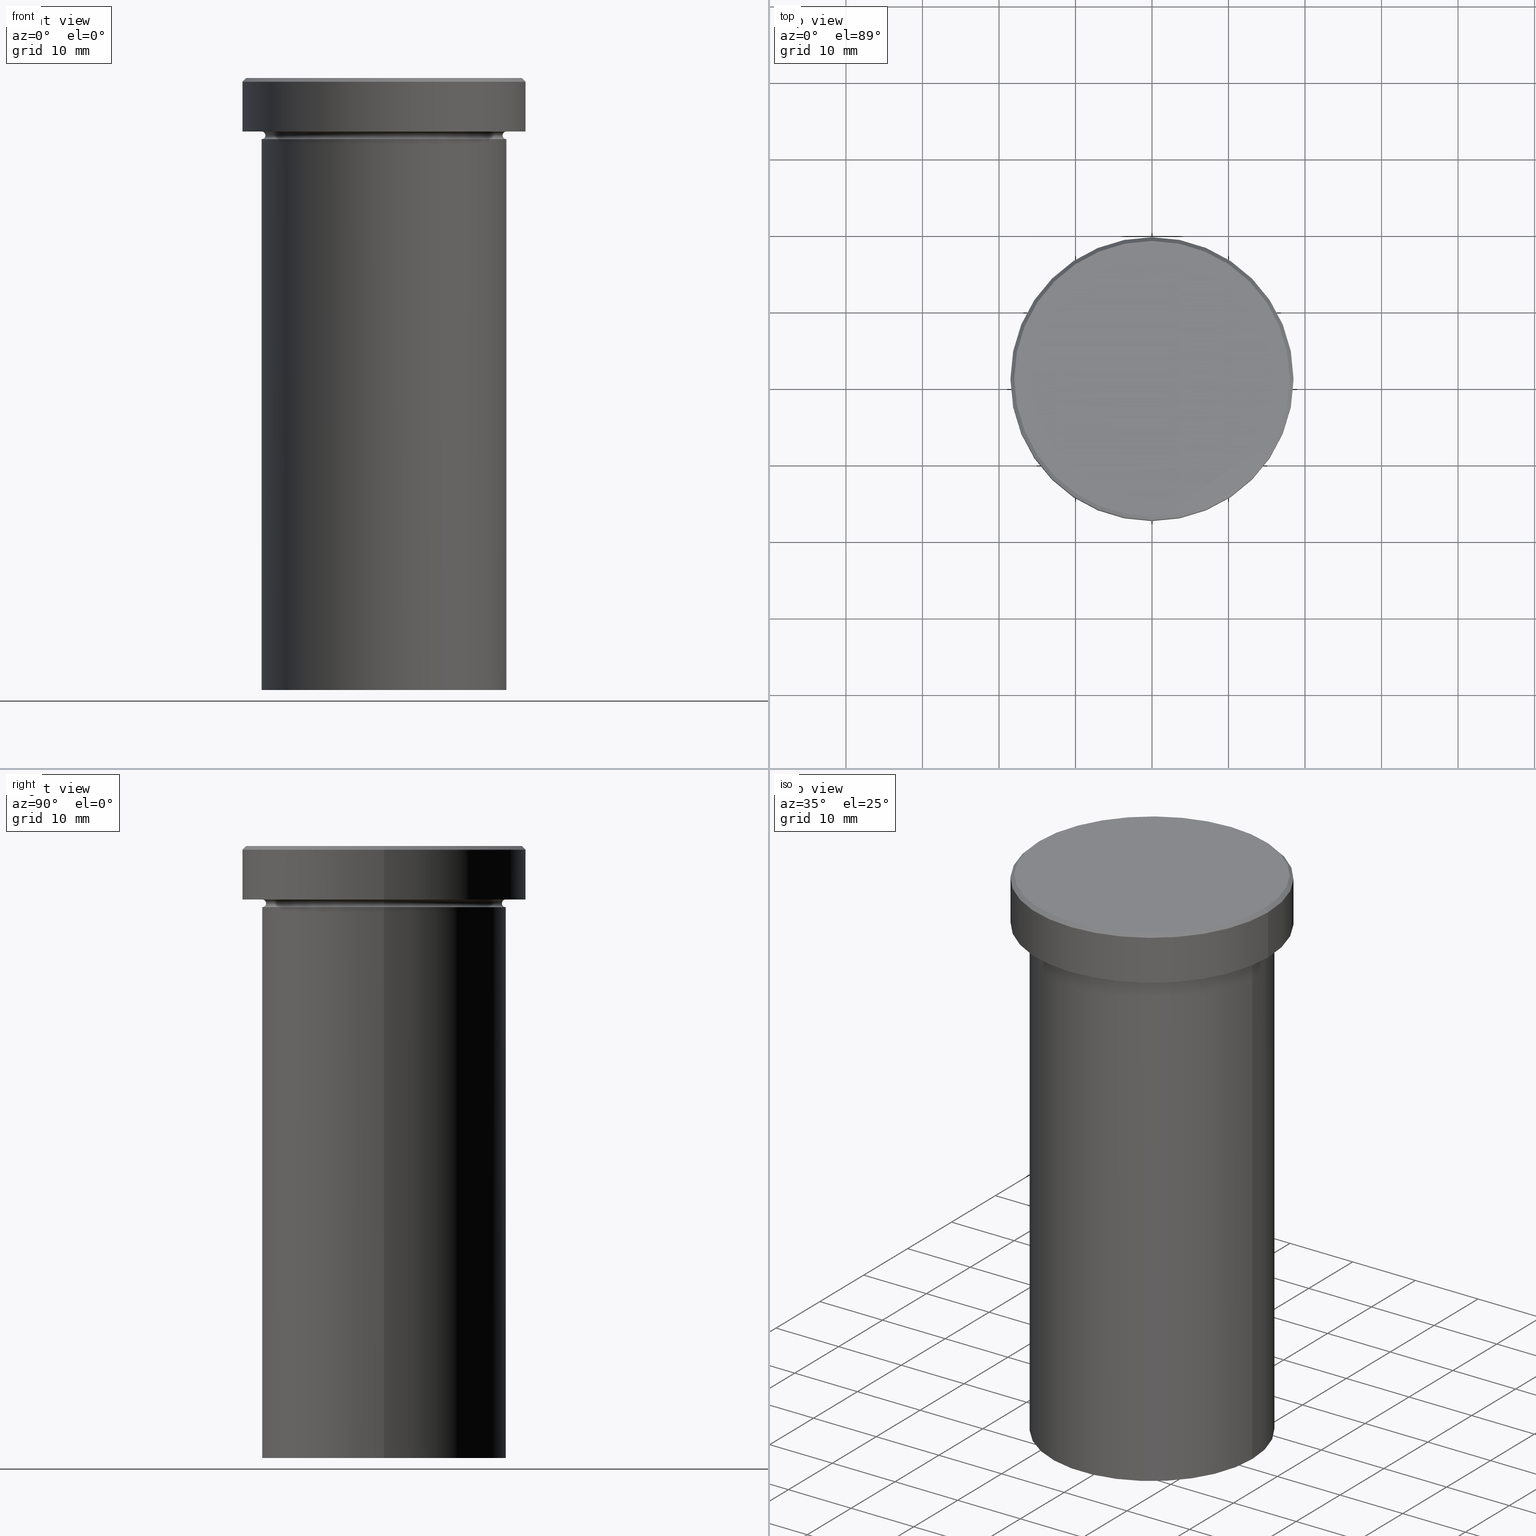
[diagram: canonical four-view strip — front | top / right | iso, engineering-drawing reading convention]
A machine part, canonical four-view strip (front | top / right | iso — engineering-drawing reading convention). The complete STEP part file that produces these views, byte-faithful:
ISO-10303-21;
HEADER;
FILE_DESCRIPTION (( 'STEP AP203' ),
    '1' );
FILE_NAME ('29da.STEP',
    '2024-01-02T18:53:01',
    ( '' ),
    ( '' ),
    'SwSTEP 2.0',
    'SolidWorks 2019',
    '' );
FILE_SCHEMA (( 'CONFIG_CONTROL_DESIGN' ));
ENDSEC;

DATA;
#1 = CARTESIAN_POINT ( 'NONE',  ( 0.000000000000000000, 0.000000000000000000, 0.000000000000000000 ) ) ;
#2 = VERTEX_POINT ( 'NONE', #41 ) ;
#3 = DIRECTION ( 'NONE',  ( -0.000000000000000000, -0.000000000000000000, 1.000000000000000000 ) ) ;
#4 = FACE_OUTER_BOUND ( 'NONE', #359, .T. ) ;
#5 = DIRECTION ( 'NONE',  ( -0.000000000000000000, -0.000000000000000000, 1.000000000000000000 ) ) ;
#6 = DIRECTION ( 'NONE',  ( -0.000000000000000000, -0.000000000000000000, 1.000000000000000000 ) ) ;
#7 = ORIENTED_EDGE ( 'NONE', *, *, #98, .T. ) ;
#8 = FACE_OUTER_BOUND ( 'NONE', #200, .T. ) ;
#9 = TOROIDAL_SURFACE ( 'NONE', #298, 16.00000000000000000, 0.5000000000000000000 ) ;
#10 = CIRCLE ( 'NONE', #383, 16.00000000000000000 ) ;
#11 = ORIENTED_EDGE ( 'NONE', *, *, #20, .F. ) ;
#12 = CARTESIAN_POINT ( 'NONE',  ( 0.000000000000000000, 0.000000000000000000, -0.5000000000000213163 ) ) ;
#13 = DATE_AND_TIME ( #304, #96 ) ;
#14 = ORIENTED_EDGE ( 'NONE', *, *, #139, .F. ) ;
#15 = DIRECTION ( 'NONE',  ( -0.7071067811865402453, 0.000000000000000000, -0.7071067811865549002 ) ) ;
#16 = EDGE_CURVE ( 'NONE', #211, #57, #394, .T. ) ;
#17 = VERTEX_POINT ( 'NONE', #253 ) ;
#18 = PERSON_AND_ORGANIZATION_ROLE ( 'design_owner' ) ;
#19 = DIRECTION ( 'NONE',  ( 1.000000000000000000, 0.000000000000000000, 0.000000000000000000 ) ) ;
#20 = EDGE_CURVE ( 'NONE', #89, #211, #169, .T. ) ;
#21 = CALENDAR_DATE ( 2024, 2, 1 ) ;
#22 = CIRCLE ( 'NONE', #54, 16.00000000000000000 ) ;
#23 = UNCERTAINTY_MEASURE_WITH_UNIT (LENGTH_MEASURE( 1.000000000000000082E-05 ), #145, 'distance_accuracy_value', 'NONE');
#24 = ORIENTED_EDGE ( 'NONE', *, *, #147, .F. ) ;
#25 = FACE_OUTER_BOUND ( 'NONE', #237, .T. ) ;
#26 = PERSON ( 'NEUR�EN�', 'NEUR�EN�', 'NEUR�EN�', ('NEUR�EN�'), ('NEUR�EN�'), ('NEUR�EN�') ) ;
#27 = DIRECTION ( 'NONE',  ( -0.000000000000000000, -0.000000000000000000, 1.000000000000000000 ) ) ;
#28 = PRODUCT_RELATED_PRODUCT_CATEGORY ( 'detail', '', ( #306 ) ) ;
#29 = DIRECTION ( 'NONE',  ( 0.000000000000000000, 0.000000000000000000, -1.000000000000000000 ) ) ;
#30 = CONICAL_SURFACE ( 'NONE', #388, 17.99999999999998934, 0.7853981633974380649 ) ;
#31 = ORIENTED_EDGE ( 'NONE', *, *, #210, .F. ) ;
#32 = EDGE_CURVE ( 'NONE', #211, #227, #196, .T. ) ;
#33 = DIRECTION ( 'NONE',  ( 0.000000000000000000, 0.000000000000000000, -1.000000000000000000 ) ) ;
#34 = FACE_OUTER_BOUND ( 'NONE', #202, .T. ) ;
#35 = DIRECTION ( 'NONE',  ( 1.000000000000000000, 0.000000000000000000, 0.000000000000000000 ) ) ;
#36 = AXIS2_PLACEMENT_3D ( 'NONE', #387, #27, #86 ) ;
#37 = VECTOR ( 'NONE', #5, 1000.000000000000000 ) ;
#38 = CARTESIAN_POINT ( 'NONE',  ( 0.000000000000000000, 0.000000000000000000, -7.500000000000000000 ) ) ;
#39 = DIRECTION ( 'NONE',  ( 1.000000000000000000, 0.000000000000000000, 0.000000000000000000 ) ) ;
#40 = FACE_BOUND ( 'NONE', #176, .T. ) ;
#41 = CARTESIAN_POINT ( 'NONE',  ( -18.50000000000000000, 2.265596578422603396E-15, -0.5000000000000213163 ) ) ;
#42 = ORIENTED_EDGE ( 'NONE', *, *, #32, .T. ) ;
#43 = CARTESIAN_POINT ( 'NONE',  ( 16.00000000000000000, 0.000000000000000000, -8.000000000000000000 ) ) ;
#44 = APPROVAL_STATUS ( 'not_yet_approved' ) ;
#45 = EDGE_CURVE ( 'NONE', #47, #270, #161, .T. ) ;
#46 = DIRECTION ( 'NONE',  ( -0.000000000000000000, -0.000000000000000000, 1.000000000000000000 ) ) ;
#47 = VERTEX_POINT ( 'NONE', #291 ) ;
#48 = APPROVAL_DATE_TIME ( #274, #320 ) ;
#49 = EDGE_CURVE ( 'NONE', #135, #213, #62, .T. ) ;
#50 = DIRECTION ( 'NONE',  ( 0.000000000000000000, -1.000000000000000000, 0.000000000000000000 ) ) ;
#51 = CARTESIAN_POINT ( 'NONE',  ( 16.00000000000000000, 0.000000000000000000, -80.00000000000000000 ) ) ;
#52 = APPROVAL_PERSON_ORGANIZATION ( #64, #88, #122 ) ;
#53 = CONICAL_SURFACE ( 'NONE', #399, 17.99999999999998934, 0.7853981633974380649 ) ;
#54 = AXIS2_PLACEMENT_3D ( 'NONE', #189, #67, #91 ) ;
#55 = ORIENTED_EDGE ( 'NONE', *, *, #45, .F. ) ;
#56 = DESIGN_CONTEXT ( 'detailed design', #216, 'design' ) ;
#57 = VERTEX_POINT ( 'NONE', #301 ) ;
#58 = EDGE_CURVE ( 'NONE', #270, #2, #137, .T. ) ;
#59 = APPROVAL_DATE_TIME ( #78, #258 ) ;
#60 = DIRECTION ( 'NONE',  ( -0.000000000000000000, -0.000000000000000000, 1.000000000000000000 ) ) ;
#61 = AXIS2_PLACEMENT_3D ( 'NONE', #181, #3, #347 ) ;
#62 = CIRCLE ( 'NONE', #220, 17.99999999999998934 ) ;
#63 = DIRECTION ( 'NONE',  ( 1.000000000000000000, 0.000000000000000000, 0.000000000000000000 ) ) ;
#64 = PERSON_AND_ORGANIZATION ( #26, #340 ) ;
#65 = DIRECTION ( 'NONE',  ( -0.000000000000000000, -0.000000000000000000, 1.000000000000000000 ) ) ;
#66 = ORIENTED_EDGE ( 'NONE', *, *, #131, .T. ) ;
#67 = DIRECTION ( 'NONE',  ( -0.000000000000000000, -0.000000000000000000, 1.000000000000000000 ) ) ;
#68 = CC_DESIGN_PERSON_AND_ORGANIZATION_ASSIGNMENT ( #141, #199, ( #170 ) ) ;
#69 = DIRECTION ( 'NONE',  ( -0.000000000000000000, -0.000000000000000000, 1.000000000000000000 ) ) ;
#70 = CARTESIAN_POINT ( 'NONE',  ( -18.50000000000000000, 2.265596578422603396E-15, 0.000000000000000000 ) ) ;
#71 = SHAPE_DEFINITION_REPRESENTATION ( #94, #153 ) ;
#72 = DIRECTION ( 'NONE',  ( -0.000000000000000000, -0.000000000000000000, 1.000000000000000000 ) ) ;
#73 = EDGE_CURVE ( 'NONE', #47, #17, #164, .T. ) ;
#74 = VERTEX_POINT ( 'NONE', #90 ) ;
#75 = LINE ( 'NONE', #311, #151 ) ;
#76 = DIRECTION ( 'NONE',  ( 1.000000000000000000, 0.000000000000000000, 0.000000000000000000 ) ) ;
#77 = ORIENTED_EDGE ( 'NONE', *, *, #16, .F. ) ;
#78 = DATE_AND_TIME ( #104, #392 ) ;
#79 = AXIS2_PLACEMENT_3D ( 'NONE', #303, #395, #268 ) ;
#80 = ORIENTED_EDGE ( 'NONE', *, *, #312, .F. ) ;
#81 = COORDINATED_UNIVERSAL_TIME_OFFSET ( 1, 0, .AHEAD. ) ;
#82 = ORIENTED_EDGE ( 'NONE', *, *, #201, .T. ) ;
#83 = ADVANCED_FACE ( 'NONE', ( #263 ), #245, .F. ) ;
#84 = ORIENTED_EDGE ( 'NONE', *, *, #73, .F. ) ;
#85 = DATE_AND_TIME ( #156, #271 ) ;
#86 = DIRECTION ( 'NONE',  ( 1.000000000000000000, 0.000000000000000000, 0.000000000000000000 ) ) ;
#87 = AXIS2_PLACEMENT_3D ( 'NONE', #129, #329, #217 ) ;
#88 = APPROVAL ( #290, 'NEUR�EN�' ) ;
#89 = VERTEX_POINT ( 'NONE', #393 ) ;
#90 = CARTESIAN_POINT ( 'NONE',  ( -16.00000000000000000, 1.959434878635765131E-15, -80.00000000000000000 ) ) ;
#91 = DIRECTION ( 'NONE',  ( 1.000000000000000000, 0.000000000000000000, 0.000000000000000000 ) ) ;
#92 = CC_DESIGN_DATE_AND_TIME_ASSIGNMENT ( #85, #354, ( #307 ) ) ;
#93 = PERSON_AND_ORGANIZATION ( #26, #340 ) ;
#94 = PRODUCT_DEFINITION_SHAPE ( 'NONE', 'NONE',  #170 ) ;
#95 = ORIENTED_EDGE ( 'NONE', *, *, #131, .F. ) ;
#96 = LOCAL_TIME ( 19, 53, 1.000000000000000000, #327 ) ;
#97 = ORIENTED_EDGE ( 'NONE', *, *, #210, .T. ) ;
#98 = EDGE_CURVE ( 'NONE', #17, #2, #125, .T. ) ;
#99 = DIRECTION ( 'NONE',  ( 1.000000000000000000, 0.000000000000000000, 0.000000000000000000 ) ) ;
#100 = CIRCLE ( 'NONE', #332, 18.50000000000000000 ) ;
#101 = AXIS2_PLACEMENT_3D ( 'NONE', #364, #223, #297 ) ;
#102 = ORIENTED_EDGE ( 'NONE', *, *, #73, .T. ) ;
#103 = DIRECTION ( 'NONE',  ( 0.000000000000000000, 0.000000000000000000, -1.000000000000000000 ) ) ;
#104 = CALENDAR_DATE ( 2024, 2, 1 ) ;
#105 = CARTESIAN_POINT ( 'NONE',  ( 0.000000000000000000, 0.000000000000000000, 0.000000000000000000 ) ) ;
#106 = ORIENTED_EDGE ( 'NONE', *, *, #357, .F. ) ;
#107 = DIRECTION ( 'NONE',  ( 1.000000000000000000, 0.000000000000000000, 0.000000000000000000 ) ) ;
#108 = APPLICATION_CONTEXT ( 'configuration controlled 3d designs of mechanical parts and assemblies' ) ;
#109 = CARTESIAN_POINT ( 'NONE',  ( 0.000000000000000000, 0.000000000000000000, -80.00000000000000000 ) ) ;
#110 = DIRECTION ( 'NONE',  ( -0.000000000000000000, -0.000000000000000000, 1.000000000000000000 ) ) ;
#111 = DIRECTION ( 'NONE',  ( 1.000000000000000000, 0.000000000000000000, 0.000000000000000000 ) ) ;
#112 = FACE_OUTER_BOUND ( 'NONE', #302, .T. ) ;
#113 = CARTESIAN_POINT ( 'NONE',  ( 0.000000000000000000, 0.000000000000000000, -7.500000000000000000 ) ) ;
#114 = DIRECTION ( 'NONE',  ( 1.000000000000000000, 0.000000000000000000, 0.000000000000000000 ) ) ;
#115 = MANIFOLD_SOLID_BREP ( 'Zkosen�1', #407 ) ;
#116 = VECTOR ( 'NONE', #168, 1000.000000000000114 ) ;
#117 = CIRCLE ( 'NONE', #36, 17.99999999999998934 ) ;
#118 = ORIENTED_EDGE ( 'NONE', *, *, #361, .T. ) ;
#119 = FACE_OUTER_BOUND ( 'NONE', #214, .T. ) ;
#120 = ORIENTED_EDGE ( 'NONE', *, *, #45, .T. ) ;
#121 = ADVANCED_FACE ( 'NONE', ( #193 ), #261, .T. ) ;
#122 = APPROVAL_ROLE ( '' ) ;
#123 = ORIENTED_EDGE ( 'NONE', *, *, #20, .T. ) ;
#124 = ORIENTED_EDGE ( 'NONE', *, *, #32, .F. ) ;
#125 = LINE ( 'NONE', #70, #369 ) ;
#126 = PERSON_AND_ORGANIZATION ( #26, #340 ) ;
#127 = VECTOR ( 'NONE', #15, 1000.000000000000114 ) ;
#128 = AXIS2_PLACEMENT_3D ( 'NONE', #150, #103, #240 ) ;
#129 = CARTESIAN_POINT ( 'NONE',  ( 0.000000000000000000, 0.000000000000000000, -6.999999999999999112 ) ) ;
#130 = ORIENTED_EDGE ( 'NONE', *, *, #224, .F. ) ;
#131 = EDGE_CURVE ( 'NONE', #57, #229, #10, .T. ) ;
#132 = DIRECTION ( 'NONE',  ( 0.000000000000000000, 0.000000000000000000, -1.000000000000000000 ) ) ;
#133 = LINE ( 'NONE', #360, #127 ) ;
#134 = CC_DESIGN_APPROVAL ( #88, ( #307 ) ) ;
#135 = VERTEX_POINT ( 'NONE', #286 ) ;
#136 = CIRCLE ( 'NONE', #325, 15.50000000000000000 ) ;
#137 = CIRCLE ( 'NONE', #128, 18.50000000000000000 ) ;
#138 = FACE_OUTER_BOUND ( 'NONE', #235, .T. ) ;
#139 = EDGE_CURVE ( 'NONE', #17, #47, #310, .T. ) ;
#140 = PERSON_AND_ORGANIZATION ( #26, #340 ) ;
#141 = PERSON_AND_ORGANIZATION ( #26, #340 ) ;
#142 = CC_DESIGN_APPROVAL ( #258, ( #170 ) ) ;
#143 = ORIENTED_EDGE ( 'NONE', *, *, #312, .T. ) ;
#144 = AXIS2_PLACEMENT_3D ( 'NONE', #38, #378, #288 ) ;
#145 =( LENGTH_UNIT ( ) NAMED_UNIT ( * ) SI_UNIT ( .MILLI., .METRE. ) );
#146 = CALENDAR_DATE ( 2024, 2, 1 ) ;
#147 = EDGE_CURVE ( 'NONE', #213, #135, #117, .T. ) ;
#148 = PLANE ( 'NONE',  #408 ) ;
#149 = LOCAL_TIME ( 19, 53, 1.000000000000000000, #269 ) ;
#150 = CARTESIAN_POINT ( 'NONE',  ( 0.000000000000000000, 0.000000000000000000, -0.5000000000000213163 ) ) ;
#151 = VECTOR ( 'NONE', #72, 1000.000000000000000 ) ;
#152 = ADVANCED_FACE ( 'NONE', ( #317 ), #53, .T. ) ;
#153 = ADVANCED_BREP_SHAPE_REPRESENTATION ( '29da', ( #115, #232 ), #205 ) ;
#154 = DIRECTION ( 'NONE',  ( -1.000000000000000000, 0.000000000000000000, 0.000000000000000000 ) ) ;
#155 = DIRECTION ( 'NONE',  ( 0.000000000000000000, 0.000000000000000000, 1.000000000000000000 ) ) ;
#156 = CALENDAR_DATE ( 2024, 2, 1 ) ;
#157 = ORIENTED_EDGE ( 'NONE', *, *, #49, .F. ) ;
#158 = DIRECTION ( 'NONE',  ( -1.000000000000000000, 0.000000000000000000, -0.000000000000000000 ) ) ;
#159 = CC_DESIGN_APPROVAL ( #320, ( #367 ) ) ;
#160 = AXIS2_PLACEMENT_3D ( 'NONE', #346, #60, #315 ) ;
#161 = LINE ( 'NONE', #406, #319 ) ;
#162 = PLANE ( 'NONE',  #79 ) ;
#163 = ADVANCED_FACE ( 'NONE', ( #278 ), #343, .T. ) ;
#164 = CIRCLE ( 'NONE', #207, 18.50000000000000000 ) ;
#165 = ORIENTED_EDGE ( 'NONE', *, *, #276, .T. ) ;
#166 = PERSON_AND_ORGANIZATION ( #26, #340 ) ;
#167 = LINE ( 'NONE', #300, #116 ) ;
#168 = DIRECTION ( 'NONE',  ( 0.7071067811865402453, 8.659560562354844111E-17, -0.7071067811865549002 ) ) ;
#169 = CIRCLE ( 'NONE', #277, 15.50000000000000000 ) ;
#170 = PRODUCT_DEFINITION ( 'NEZN�M�', '', #367, #56 ) ;
#171 = CARTESIAN_POINT ( 'NONE',  ( 0.000000000000000000, 0.000000000000000000, -8.000000000000000000 ) ) ;
#172 = CC_DESIGN_PERSON_AND_ORGANIZATION_ASSIGNMENT ( #126, #256, ( #307 ) ) ;
#173 = CIRCLE ( 'NONE', #266, 16.00000000000000000 ) ;
#174 = AXIS2_PLACEMENT_3D ( 'NONE', #171, #397, #99 ) ;
#175 = DATE_AND_TIME ( #146, #348 ) ;
#176 = EDGE_LOOP ( 'NONE', ( #371, #187 ) ) ;
#177 = CARTESIAN_POINT ( 'NONE',  ( 0.000000000000000000, 0.000000000000000000, 0.000000000000000000 ) ) ;
#178 = CARTESIAN_POINT ( 'NONE',  ( 0.000000000000000000, 0.000000000000000000, 0.000000000000000000 ) ) ;
#179 = AXIS2_PLACEMENT_3D ( 'NONE', #389, #243, #351 ) ;
#180 = EDGE_CURVE ( 'NONE', #135, #270, #167, .T. ) ;
#181 = CARTESIAN_POINT ( 'NONE',  ( 0.000000000000000000, 0.000000000000000000, 0.000000000000000000 ) ) ;
#182 = ORIENTED_EDGE ( 'NONE', *, *, #282, .T. ) ;
#183 = DIRECTION ( 'NONE',  ( 1.224646799147353207E-16, 1.000000000000000000, 0.000000000000000000 ) ) ;
#184 = CC_DESIGN_PERSON_AND_ORGANIZATION_ASSIGNMENT ( #140, #339, ( #367 ) ) ;
#185 = CYLINDRICAL_SURFACE ( 'NONE', #61, 16.00000000000000000 ) ;
#186 = PERSON_AND_ORGANIZATION ( #26, #340 ) ;
#187 = ORIENTED_EDGE ( 'NONE', *, *, #188, .T. ) ;
#188 = EDGE_CURVE ( 'NONE', #344, #227, #173, .T. ) ;
#189 = CARTESIAN_POINT ( 'NONE',  ( 0.000000000000000000, 0.000000000000000000, -80.00000000000000000 ) ) ;
#190 = EDGE_LOOP ( 'NONE', ( #257, #208 ) ) ;
#191 = DIRECTION ( 'NONE',  ( -1.000000000000000000, 0.000000000000000000, 0.000000000000000000 ) ) ;
#192 = AXIS2_PLACEMENT_3D ( 'NONE', #331, #46, #114 ) ;
#193 = FACE_OUTER_BOUND ( 'NONE', #385, .T. ) ;
#194 = CC_DESIGN_DATE_AND_TIME_ASSIGNMENT ( #175, #336, ( #170 ) ) ;
#195 = CIRCLE ( 'NONE', #233, 16.00000000000000000 ) ;
#196 = CIRCLE ( 'NONE', #179, 0.5000000000000004441 ) ;
#197 = ADVANCED_FACE ( 'NONE', ( #138 ), #162, .T. ) ;
#198 = CARTESIAN_POINT ( 'NONE',  ( 16.00000000000000000, 1.959434878635765131E-15, -6.999999999999999112 ) ) ;
#199 = PERSON_AND_ORGANIZATION_ROLE ( 'creator' ) ;
#200 = EDGE_LOOP ( 'NONE', ( #231, #273, #120, #279 ) ) ;
#201 = EDGE_CURVE ( 'NONE', #275, #74, #22, .T. ) ;
#202 = EDGE_LOOP ( 'NONE', ( #80, #123, #42, #409 ) ) ;
#203 =( NAMED_UNIT ( * ) SI_UNIT ( $, .STERADIAN. ) SOLID_ANGLE_UNIT ( ) );
#204 = CARTESIAN_POINT ( 'NONE',  ( 0.000000000000000000, 18.50000000000000000, -6.999999999999999112 ) ) ;
#205 =( GEOMETRIC_REPRESENTATION_CONTEXT ( 3 ) GLOBAL_UNCERTAINTY_ASSIGNED_CONTEXT ( ( #23 ) ) GLOBAL_UNIT_ASSIGNED_CONTEXT ( ( #145, #313, #203 ) ) REPRESENTATION_CONTEXT ( 'NONE', 'WORKASPACE' ) );
#206 = TOROIDAL_SURFACE ( 'NONE', #144, 16.00000000000000000, 0.5000000000000000000 ) ;
#207 = AXIS2_PLACEMENT_3D ( 'NONE', #281, #110, #328 ) ;
#208 = ORIENTED_EDGE ( 'NONE', *, *, #326, .F. ) ;
#209 = CARTESIAN_POINT ( 'NONE',  ( 16.00000000000000000, 1.959434878635765131E-15, -7.500000000000000000 ) ) ;
#210 = EDGE_CURVE ( 'NONE', #275, #229, #321, .T. ) ;
#211 = VERTEX_POINT ( 'NONE', #219 ) ;
#212 = EDGE_LOOP ( 'NONE', ( #338, #249, #97, #95 ) ) ;
#213 = VERTEX_POINT ( 'NONE', #323 ) ;
#214 = EDGE_LOOP ( 'NONE', ( #77, #11, #318, #182 ) ) ;
#215 = EDGE_CURVE ( 'NONE', #227, #344, #267, .T. ) ;
#216 = APPLICATION_CONTEXT ( 'configuration controlled 3d designs of mechanical parts and assemblies' ) ;
#217 = DIRECTION ( 'NONE',  ( -1.000000000000000000, 0.000000000000000000, 0.000000000000000000 ) ) ;
#218 = APPROVAL_PERSON_ORGANIZATION ( #234, #320, #333 ) ;
#219 = CARTESIAN_POINT ( 'NONE',  ( -15.50000000000000000, 1.928818708657081344E-15, -7.500000000000000000 ) ) ;
#220 = AXIS2_PLACEMENT_3D ( 'NONE', #1, #355, #39 ) ;
#221 = AXIS2_PLACEMENT_3D ( 'NONE', #209, #247, #314 ) ;
#222 = APPROVAL_DATE_TIME ( #13, #88 ) ;
#223 = DIRECTION ( 'NONE',  ( -0.000000000000000000, -0.000000000000000000, 1.000000000000000000 ) ) ;
#224 = EDGE_CURVE ( 'NONE', #2, #270, #100, .T. ) ;
#225 = CC_DESIGN_SECURITY_CLASSIFICATION ( #307, ( #367 ) ) ;
#226 = AXIS2_PLACEMENT_3D ( 'NONE', #337, #50, #262 ) ;
#227 = VERTEX_POINT ( 'NONE', #363 ) ;
#228 = CYLINDRICAL_SURFACE ( 'NONE', #368, 18.50000000000000000 ) ;
#229 = VERTEX_POINT ( 'NONE', #43 ) ;
#230 = APPROVAL_STATUS ( 'not_yet_approved' ) ;
#231 = ORIENTED_EDGE ( 'NONE', *, *, #98, .F. ) ;
#232 = AXIS2_PLACEMENT_3D ( 'NONE', #105, #155, #107 ) ;
#233 = AXIS2_PLACEMENT_3D ( 'NONE', #109, #349, #19 ) ;
#234 = PERSON_AND_ORGANIZATION ( #26, #340 ) ;
#235 = EDGE_LOOP ( 'NONE', ( #296, #285 ) ) ;
#236 = CC_DESIGN_PERSON_AND_ORGANIZATION_ASSIGNMENT ( #186, #259, ( #367 ) ) ;
#237 = EDGE_LOOP ( 'NONE', ( #330, #24, #118, #352 ) ) ;
#238 = ORIENTED_EDGE ( 'NONE', *, *, #224, .T. ) ;
#239 = COORDINATED_UNIVERSAL_TIME_OFFSET ( 1, 0, .AHEAD. ) ;
#240 = DIRECTION ( 'NONE',  ( 1.000000000000000000, 0.000000000000000000, 0.000000000000000000 ) ) ;
#241 = DIRECTION ( 'NONE',  ( 1.000000000000000000, 0.000000000000000000, 0.000000000000000000 ) ) ;
#242 = CARTESIAN_POINT ( 'NONE',  ( 0.000000000000000000, 0.000000000000000000, -7.500000000000000000 ) ) ;
#243 = DIRECTION ( 'NONE',  ( -0.000000000000000000, -1.000000000000000000, -0.000000000000000000 ) ) ;
#244 = ADVANCED_FACE ( 'NONE', ( #25 ), #30, .T. ) ;
#245 = TOROIDAL_SURFACE ( 'NONE', #101, 16.00000000000000000, 0.5000000000000000000 ) ;
#246 = EDGE_LOOP ( 'NONE', ( #102, #7, #238, #55 ) ) ;
#247 = DIRECTION ( 'NONE',  ( -1.224646799147353207E-16, 1.000000000000000000, 0.000000000000000000 ) ) ;
#248 = DIRECTION ( 'NONE',  ( -0.000000000000000000, -0.000000000000000000, 1.000000000000000000 ) ) ;
#249 = ORIENTED_EDGE ( 'NONE', *, *, #326, .T. ) ;
#250 = DIRECTION ( 'NONE',  ( -0.000000000000000000, -0.000000000000000000, 1.000000000000000000 ) ) ;
#251 = FACE_OUTER_BOUND ( 'NONE', #212, .T. ) ;
#252 = CARTESIAN_POINT ( 'NONE',  ( -16.00000000000000000, 1.959434878635765131E-15, -7.500000000000000000 ) ) ;
#253 = CARTESIAN_POINT ( 'NONE',  ( -18.50000000000000000, 2.265596578422603396E-15, -6.999999999999998224 ) ) ;
#254 = EDGE_LOOP ( 'NONE', ( #157, #342, #130, #292 ) ) ;
#255 = DIRECTION ( 'NONE',  ( -0.000000000000000000, -0.000000000000000000, 1.000000000000000000 ) ) ;
#256 = PERSON_AND_ORGANIZATION_ROLE ( 'classification_officer' ) ;
#257 = ORIENTED_EDGE ( 'NONE', *, *, #201, .F. ) ;
#258 = APPROVAL ( #44, 'NEUR�EN�' ) ;
#259 = PERSON_AND_ORGANIZATION_ROLE ( 'design_supplier' ) ;
#260 = APPLICATION_PROTOCOL_DEFINITION ( 'international standard', 'config_control_design', 1994, #216 ) ;
#261 = CYLINDRICAL_SURFACE ( 'NONE', #192, 16.00000000000000000 ) ;
#262 = DIRECTION ( 'NONE',  ( 0.000000000000000000, 0.000000000000000000, -1.000000000000000000 ) ) ;
#263 = FACE_OUTER_BOUND ( 'NONE', #280, .T. ) ;
#264 = APPROVAL_PERSON_ORGANIZATION ( #93, #258, #365 ) ;
#265 = EDGE_CURVE ( 'NONE', #211, #89, #136, .T. ) ;
#266 = AXIS2_PLACEMENT_3D ( 'NONE', #358, #69, #191 ) ;
#267 = CIRCLE ( 'NONE', #87, 16.00000000000000000 ) ;
#268 = DIRECTION ( 'NONE',  ( 1.000000000000000000, 0.000000000000000000, 0.000000000000000000 ) ) ;
#269 = COORDINATED_UNIVERSAL_TIME_OFFSET ( 1, 0, .AHEAD. ) ;
#270 = VERTEX_POINT ( 'NONE', #402 ) ;
#271 = LOCAL_TIME ( 19, 53, 1.000000000000000000, #239 ) ;
#272 = CARTESIAN_POINT ( 'NONE',  ( 0.000000000000000000, 0.000000000000000000, 0.000000000000000000 ) ) ;
#273 = ORIENTED_EDGE ( 'NONE', *, *, #139, .T. ) ;
#274 = DATE_AND_TIME ( #21, #149 ) ;
#275 = VERTEX_POINT ( 'NONE', #51 ) ;
#276 = EDGE_CURVE ( 'NONE', #74, #57, #75, .T. ) ;
#277 = AXIS2_PLACEMENT_3D ( 'NONE', #113, #6, #35 ) ;
#278 = FACE_OUTER_BOUND ( 'NONE', #246, .T. ) ;
#279 = ORIENTED_EDGE ( 'NONE', *, *, #58, .T. ) ;
#280 = EDGE_LOOP ( 'NONE', ( #289, #374, #66, #106 ) ) ;
#281 = CARTESIAN_POINT ( 'NONE',  ( 0.000000000000000000, 0.000000000000000000, -6.999999999999998224 ) ) ;
#282 = EDGE_CURVE ( 'NONE', #229, #57, #309, .T. ) ;
#283 = CARTESIAN_POINT ( 'NONE',  ( 0.000000000000000000, 0.000000000000000000, -6.999999999999998224 ) ) ;
#284 = CARTESIAN_POINT ( 'NONE',  ( 0.000000000000000000, 0.000000000000000000, -7.500000000000000000 ) ) ;
#285 = ORIENTED_EDGE ( 'NONE', *, *, #49, .T. ) ;
#286 = CARTESIAN_POINT ( 'NONE',  ( 17.99999999999998934, 2.234980408443918820E-15, 0.000000000000000000 ) ) ;
#287 = CIRCLE ( 'NONE', #226, 0.5000000000000004441 ) ;
#288 = DIRECTION ( 'NONE',  ( -1.000000000000000000, 0.000000000000000000, 0.000000000000000000 ) ) ;
#289 = ORIENTED_EDGE ( 'NONE', *, *, #265, .F. ) ;
#290 = APPROVAL_STATUS ( 'not_yet_approved' ) ;
#291 = CARTESIAN_POINT ( 'NONE',  ( 18.50000000000000000, 0.000000000000000000, -6.999999999999998224 ) ) ;
#292 = ORIENTED_EDGE ( 'NONE', *, *, #361, .F. ) ;
#293 = ADVANCED_FACE ( 'NONE', ( #373 ), #148, .T. ) ;
#294 = CARTESIAN_POINT ( 'NONE',  ( 16.00000000000000000, 0.000000000000000000, 0.000000000000000000 ) ) ;
#295 = SECURITY_CLASSIFICATION_LEVEL ( 'unclassified' ) ;
#296 = ORIENTED_EDGE ( 'NONE', *, *, #147, .T. ) ;
#297 = DIRECTION ( 'NONE',  ( 1.000000000000000000, 0.000000000000000000, 0.000000000000000000 ) ) ;
#298 = AXIS2_PLACEMENT_3D ( 'NONE', #284, #33, #380 ) ;
#299 = AXIS2_PLACEMENT_3D ( 'NONE', #283, #248, #241 ) ;
#300 = CARTESIAN_POINT ( 'NONE',  ( 17.99999999999998934, 2.204364238465234244E-15, 0.000000000000000000 ) ) ;
#301 = CARTESIAN_POINT ( 'NONE',  ( -16.00000000000000000, 1.959434878635765131E-15, -8.000000000000000000 ) ) ;
#302 = EDGE_LOOP ( 'NONE', ( #324, #143, #401, #124 ) ) ;
#303 = CARTESIAN_POINT ( 'NONE',  ( 0.000000000000000000, 0.000000000000000000, 0.000000000000000000 ) ) ;
#304 = CALENDAR_DATE ( 2024, 2, 1 ) ;
#305 = ADVANCED_FACE ( 'NONE', ( #40, #4 ), #404, .T. ) ;
#306 = PRODUCT ( '29da', '29da', '', ( #376 ) ) ;
#307 = SECURITY_CLASSIFICATION ( '', '', #295 ) ;
#308 = AXIS2_PLACEMENT_3D ( 'NONE', #252, #183, #405 ) ;
#309 = CIRCLE ( 'NONE', #174, 16.00000000000000000 ) ;
#310 = CIRCLE ( 'NONE', #299, 18.50000000000000000 ) ;
#311 = CARTESIAN_POINT ( 'NONE',  ( -16.00000000000000000, 1.959434878635765131E-15, 0.000000000000000000 ) ) ;
#312 = EDGE_CURVE ( 'NONE', #89, #344, #382, .T. ) ;
#313 =( NAMED_UNIT ( * ) PLANE_ANGLE_UNIT ( ) SI_UNIT ( $, .RADIAN. ) );
#314 = DIRECTION ( 'NONE',  ( -1.000000000000000000, -1.224646799147349509E-16, 0.000000000000000000 ) ) ;
#315 = DIRECTION ( 'NONE',  ( 1.000000000000000000, 0.000000000000000000, 0.000000000000000000 ) ) ;
#316 = CC_DESIGN_PERSON_AND_ORGANIZATION_ASSIGNMENT ( #166, #18, ( #306 ) ) ;
#317 = FACE_OUTER_BOUND ( 'NONE', #254, .T. ) ;
#318 = ORIENTED_EDGE ( 'NONE', *, *, #357, .T. ) ;
#319 = VECTOR ( 'NONE', #65, 1000.000000000000000 ) ;
#320 = APPROVAL ( #230, 'NEUR�EN�' ) ;
#321 = LINE ( 'NONE', #294, #37 ) ;
#322 = ORIENTED_EDGE ( 'NONE', *, *, #282, .F. ) ;
#323 = CARTESIAN_POINT ( 'NONE',  ( -17.99999999999998934, 0.000000000000000000, 0.000000000000000000 ) ) ;
#324 = ORIENTED_EDGE ( 'NONE', *, *, #265, .T. ) ;
#325 = AXIS2_PLACEMENT_3D ( 'NONE', #242, #381, #350 ) ;
#326 = EDGE_CURVE ( 'NONE', #74, #275, #195, .T. ) ;
#327 = COORDINATED_UNIVERSAL_TIME_OFFSET ( 1, 0, .AHEAD. ) ;
#328 = DIRECTION ( 'NONE',  ( 1.000000000000000000, 0.000000000000000000, 0.000000000000000000 ) ) ;
#329 = DIRECTION ( 'NONE',  ( -0.000000000000000000, -0.000000000000000000, 1.000000000000000000 ) ) ;
#330 = ORIENTED_EDGE ( 'NONE', *, *, #180, .F. ) ;
#331 = CARTESIAN_POINT ( 'NONE',  ( 0.000000000000000000, 0.000000000000000000, 0.000000000000000000 ) ) ;
#332 = AXIS2_PLACEMENT_3D ( 'NONE', #12, #132, #391 ) ;
#333 = APPROVAL_ROLE ( '' ) ;
#334 = ADVANCED_FACE ( 'NONE', ( #8 ), #228, .T. ) ;
#335 = CARTESIAN_POINT ( 'NONE',  ( 0.000000000000000000, 16.00000000000000000, -80.00000000000000000 ) ) ;
#336 = DATE_TIME_ROLE ( 'creation_date' ) ;
#337 = CARTESIAN_POINT ( 'NONE',  ( 16.00000000000000000, 0.000000000000000000, -7.500000000000000000 ) ) ;
#338 = ORIENTED_EDGE ( 'NONE', *, *, #276, .F. ) ;
#339 = PERSON_AND_ORGANIZATION_ROLE ( 'creator' ) ;
#340 = ORGANIZATION ( 'NEUR�EN�', 'NEUR�EN�', '' ) ;
#341 = TOROIDAL_SURFACE ( 'NONE', #160, 16.00000000000000000, 0.5000000000000000000 ) ;
#342 = ORIENTED_EDGE ( 'NONE', *, *, #180, .T. ) ;
#343 = CYLINDRICAL_SURFACE ( 'NONE', #362, 18.50000000000000000 ) ;
#344 = VERTEX_POINT ( 'NONE', #198 ) ;
#345 = DIRECTION ( 'NONE',  ( 0.000000000000000000, 0.000000000000000000, -1.000000000000000000 ) ) ;
#346 = CARTESIAN_POINT ( 'NONE',  ( 0.000000000000000000, 0.000000000000000000, -7.500000000000000000 ) ) ;
#347 = DIRECTION ( 'NONE',  ( 1.000000000000000000, 0.000000000000000000, 0.000000000000000000 ) ) ;
#348 = LOCAL_TIME ( 19, 53, 1.000000000000000000, #81 ) ;
#349 = DIRECTION ( 'NONE',  ( -0.000000000000000000, -0.000000000000000000, 1.000000000000000000 ) ) ;
#350 = DIRECTION ( 'NONE',  ( 1.000000000000000000, 0.000000000000000000, 0.000000000000000000 ) ) ;
#351 = DIRECTION ( 'NONE',  ( 0.000000000000000000, 0.000000000000000000, -1.000000000000000000 ) ) ;
#352 = ORIENTED_EDGE ( 'NONE', *, *, #58, .F. ) ;
#353 = CARTESIAN_POINT ( 'NONE',  ( 0.000000000000000000, 0.000000000000000000, 0.000000000000000000 ) ) ;
#354 = DATE_TIME_ROLE ( 'classification_date' ) ;
#355 = DIRECTION ( 'NONE',  ( -0.000000000000000000, -0.000000000000000000, 1.000000000000000000 ) ) ;
#356 = DIRECTION ( 'NONE',  ( 0.000000000000000000, 0.000000000000000000, -1.000000000000000000 ) ) ;
#357 = EDGE_CURVE ( 'NONE', #89, #229, #287, .T. ) ;
#358 = CARTESIAN_POINT ( 'NONE',  ( 0.000000000000000000, 0.000000000000000000, -6.999999999999999112 ) ) ;
#359 = EDGE_LOOP ( 'NONE', ( #84, #14 ) ) ;
#360 = CARTESIAN_POINT ( 'NONE',  ( -17.99999999999998934, 0.000000000000000000, 0.000000000000000000 ) ) ;
#361 = EDGE_CURVE ( 'NONE', #213, #2, #133, .T. ) ;
#362 = AXIS2_PLACEMENT_3D ( 'NONE', #177, #403, #63 ) ;
#363 = CARTESIAN_POINT ( 'NONE',  ( -16.00000000000000000, 0.000000000000000000, -6.999999999999999112 ) ) ;
#364 = CARTESIAN_POINT ( 'NONE',  ( 0.000000000000000000, 0.000000000000000000, -7.500000000000000000 ) ) ;
#365 = APPROVAL_ROLE ( '' ) ;
#366 = ADVANCED_FACE ( 'NONE', ( #251 ), #185, .T. ) ;
#367 = PRODUCT_DEFINITION_FORMATION_WITH_SPECIFIED_SOURCE ( 'LIBOVOLN�', '', #306, .NOT_KNOWN. ) ;
#368 = AXIS2_PLACEMENT_3D ( 'NONE', #272, #398, #76 ) ;
#369 = VECTOR ( 'NONE', #255, 1000.000000000000000 ) ;
#370 = COORDINATED_UNIVERSAL_TIME_OFFSET ( 1, 0, .AHEAD. ) ;
#371 = ORIENTED_EDGE ( 'NONE', *, *, #215, .T. ) ;
#372 = ADVANCED_FACE ( 'NONE', ( #112 ), #9, .F. ) ;
#373 = FACE_OUTER_BOUND ( 'NONE', #190, .T. ) ;
#374 = ORIENTED_EDGE ( 'NONE', *, *, #16, .T. ) ;
#375 = AXIS2_PLACEMENT_3D ( 'NONE', #204, #345, #158 ) ;
#376 = MECHANICAL_CONTEXT ( 'NONE', #108, 'mechanical' ) ;
#377 = DIRECTION ( 'NONE',  ( -1.000000000000000000, 0.000000000000000000, -0.000000000000000000 ) ) ;
#378 = DIRECTION ( 'NONE',  ( 0.000000000000000000, 0.000000000000000000, -1.000000000000000000 ) ) ;
#379 = DIRECTION ( 'NONE',  ( 0.000000000000000000, 0.000000000000000000, -1.000000000000000000 ) ) ;
#380 = DIRECTION ( 'NONE',  ( -1.000000000000000000, 0.000000000000000000, 0.000000000000000000 ) ) ;
#381 = DIRECTION ( 'NONE',  ( -0.000000000000000000, -0.000000000000000000, 1.000000000000000000 ) ) ;
#382 = CIRCLE ( 'NONE', #221, 0.5000000000000004441 ) ;
#383 = AXIS2_PLACEMENT_3D ( 'NONE', #384, #250, #111 ) ;
#384 = CARTESIAN_POINT ( 'NONE',  ( 0.000000000000000000, 0.000000000000000000, -8.000000000000000000 ) ) ;
#385 = EDGE_LOOP ( 'NONE', ( #82, #165, #322, #31 ) ) ;
#386 = DIRECTION ( 'NONE',  ( -1.000000000000000000, 0.000000000000000000, 0.000000000000000000 ) ) ;
#387 = CARTESIAN_POINT ( 'NONE',  ( 0.000000000000000000, 0.000000000000000000, 0.000000000000000000 ) ) ;
#388 = AXIS2_PLACEMENT_3D ( 'NONE', #178, #29, #154 ) ;
#389 = CARTESIAN_POINT ( 'NONE',  ( -16.00000000000000000, 0.000000000000000000, -7.500000000000000000 ) ) ;
#390 = ADVANCED_FACE ( 'NONE', ( #34 ), #206, .F. ) ;
#391 = DIRECTION ( 'NONE',  ( 1.000000000000000000, 0.000000000000000000, 0.000000000000000000 ) ) ;
#392 = LOCAL_TIME ( 19, 53, 1.000000000000000000, #370 ) ;
#393 = CARTESIAN_POINT ( 'NONE',  ( 15.50000000000000000, 0.000000000000000000, -7.500000000000000000 ) ) ;
#394 = CIRCLE ( 'NONE', #308, 0.5000000000000004441 ) ;
#395 = DIRECTION ( 'NONE',  ( 0.000000000000000000, -0.000000000000000000, 1.000000000000000000 ) ) ;
#396 = ADVANCED_FACE ( 'NONE', ( #119 ), #341, .F. ) ;
#397 = DIRECTION ( 'NONE',  ( -0.000000000000000000, -0.000000000000000000, 1.000000000000000000 ) ) ;
#398 = DIRECTION ( 'NONE',  ( -0.000000000000000000, -0.000000000000000000, 1.000000000000000000 ) ) ;
#399 = AXIS2_PLACEMENT_3D ( 'NONE', #353, #379, #386 ) ;
#400 = APPLICATION_PROTOCOL_DEFINITION ( 'international standard', 'config_control_design', 1994, #108 ) ;
#401 = ORIENTED_EDGE ( 'NONE', *, *, #215, .F. ) ;
#402 = CARTESIAN_POINT ( 'NONE',  ( 18.50000000000000000, 0.000000000000000000, -0.5000000000000213163 ) ) ;
#403 = DIRECTION ( 'NONE',  ( -0.000000000000000000, -0.000000000000000000, 1.000000000000000000 ) ) ;
#404 = PLANE ( 'NONE',  #375 ) ;
#405 = DIRECTION ( 'NONE',  ( -1.000000000000000000, 1.224646799147349509E-16, 0.000000000000000000 ) ) ;
#406 = CARTESIAN_POINT ( 'NONE',  ( 18.50000000000000000, 0.000000000000000000, 0.000000000000000000 ) ) ;
#407 = CLOSED_SHELL ( 'NONE', ( #152, #372, #83, #121, #163, #293, #197, #334, #305, #366, #396, #390, #244 ) ) ;
#408 = AXIS2_PLACEMENT_3D ( 'NONE', #335, #356, #377 ) ;
#409 = ORIENTED_EDGE ( 'NONE', *, *, #188, .F. ) ;
ENDSEC;
END-ISO-10303-21;
